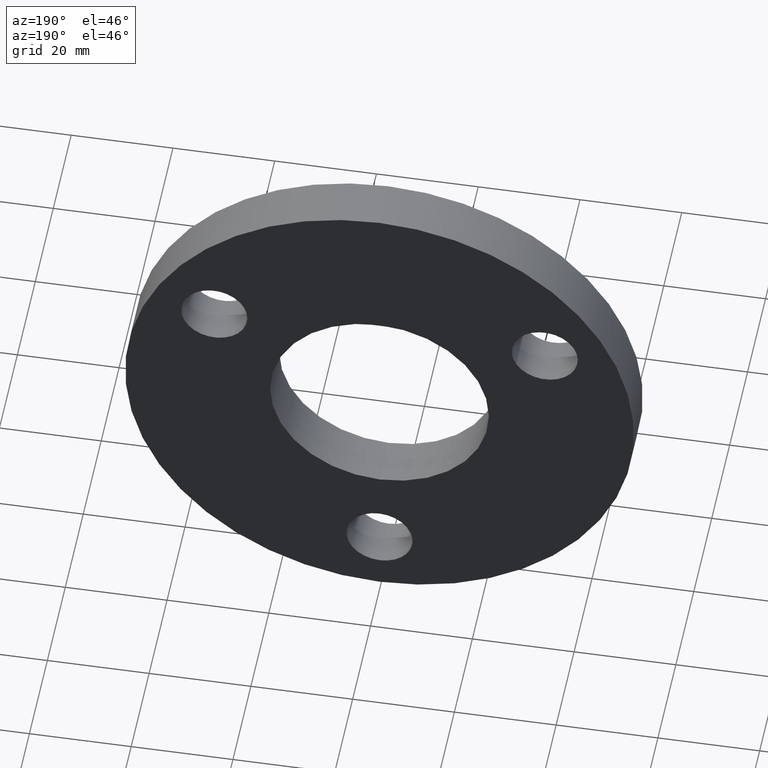
[diagram: clean part render]
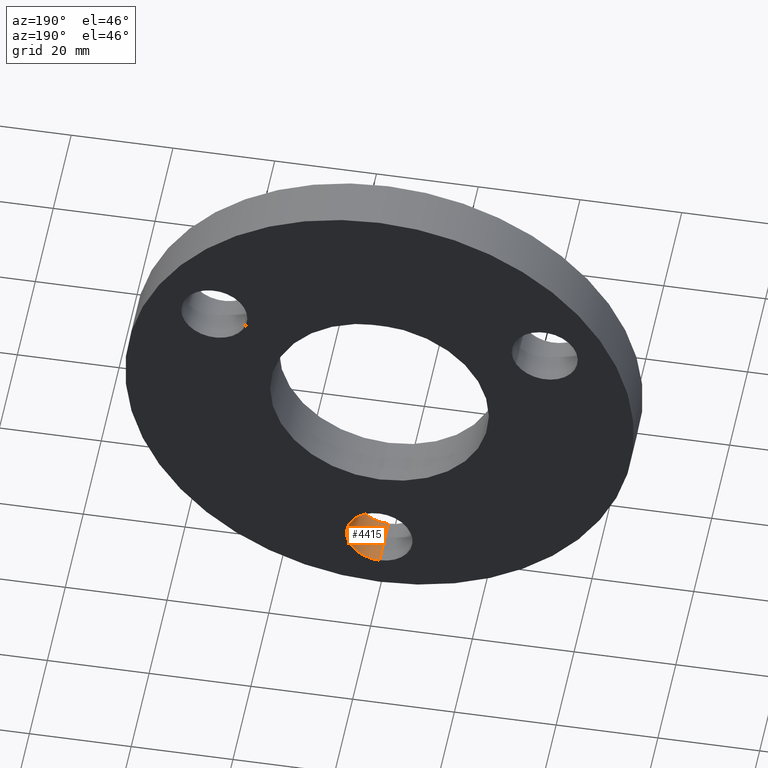
[diagram: same view with one face highlighted and labeled with its STEP entity id]
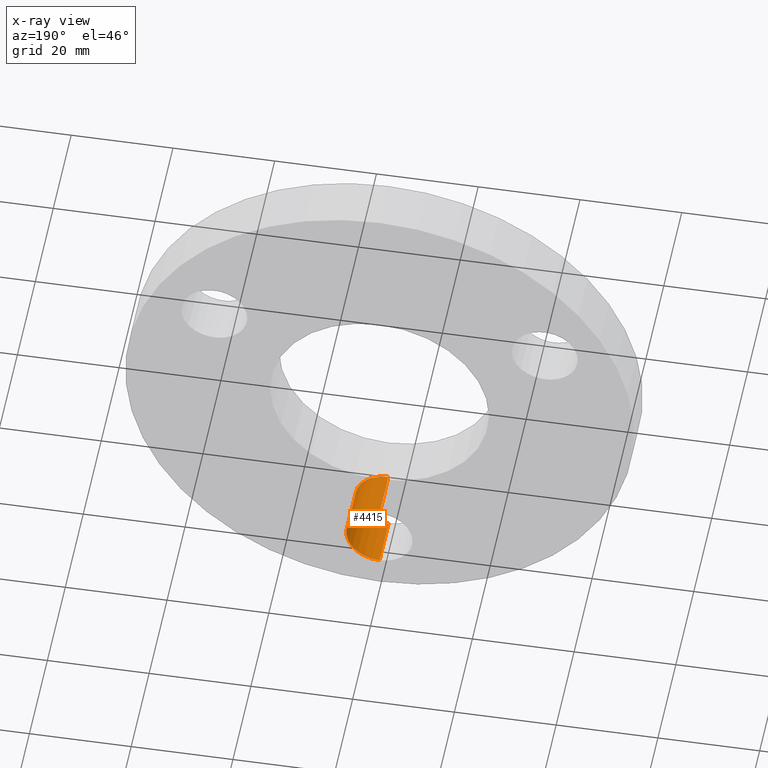
[diagram: x-ray of the same camera — body ghosted, the highlighted face saturated]
A machine part, auxiliary view. The second image highlights one B-rep face of the part: STEP entity #4415.
The next image is the same camera in x-ray: the body ghosted, the highlighted face saturated — about 1% of this face is hidden behind the body in this view.
In plain terms, the highlighted cylindrical surface (edge-blend (fillet) strip) has radius 6.5 mm, axis along (-0, 1, -0).
Its self-contained STEP definition (entity closure, byte-faithful):
#68 = EDGE_LOOP ( 'NONE', ( #2579, #5557, #6707, #6791 ) ) ;
#75 = CARTESIAN_POINT ( 'NONE',  ( 7.960204194457797400E-016, 0.0000000000000000000, -44.00000000000000000 ) ) ;
#230 = LINE ( 'NONE', #2110, #5708 ) ;
#471 = VERTEX_POINT ( 'NONE', #3000 ) ;
#1193 = EDGE_CURVE ( 'NONE', #471, #2128, #7029, .T. ) ;
#1747 = AXIS2_PLACEMENT_3D ( 'NONE', #12008, #8939, #7911 ) ;
#2110 = CARTESIAN_POINT ( 'NONE',  ( 0.0000000000000000000, 0.0000000000000000000, -31.00000000000000000 ) ) ;
#2128 = VERTEX_POINT ( 'NONE', #75 ) ;
#2579 = ORIENTED_EDGE ( 'NONE', *, *, #9832, .F. ) ;
#3000 = CARTESIAN_POINT ( 'NONE',  ( 0.0000000000000000000, 0.0000000000000000000, -31.00000000000000000 ) ) ;
#3536 = VECTOR ( 'NONE', #3958, 1000.000000000000000 ) ;
#3761 = DIRECTION ( 'NONE',  ( 0.0000000000000000000, 0.0000000000000000000, 1.000000000000000000 ) ) ;
#3958 = DIRECTION ( 'NONE',  ( -0.0000000000000000000, 1.000000000000000000, -0.0000000000000000000 ) ) ;
#4049 = DIRECTION ( 'NONE',  ( -0.0000000000000000000, 1.000000000000000000, -0.0000000000000000000 ) ) ;
#4415 = ADVANCED_FACE ( 'NONE', ( #6375 ), #12751, .F. ) ;
#5222 = VERTEX_POINT ( 'NONE', #11714 ) ;
#5557 = ORIENTED_EDGE ( 'NONE', *, *, #1193, .F. ) ;
#5703 = CARTESIAN_POINT ( 'NONE',  ( 0.0000000000000000000, 0.0000000000000000000, -37.50000000000000000 ) ) ;
#5708 = VECTOR ( 'NONE', #12266, 1000.000000000000000 ) ;
#5816 = DIRECTION ( 'NONE',  ( 0.0000000000000000000, 0.0000000000000000000, 1.000000000000000000 ) ) ;
#5943 = CARTESIAN_POINT ( 'NONE',  ( 0.0000000000000000000, 0.0000000000000000000, -37.50000000000000000 ) ) ;
#6194 = CIRCLE ( 'NONE', #1747, 6.499999999999999100 ) ;
#6333 = EDGE_CURVE ( 'NONE', #5222, #10644, #6194, .T. ) ;
#6375 = FACE_OUTER_BOUND ( 'NONE', #68, .T. ) ;
#6654 = DIRECTION ( 'NONE',  ( 0.0000000000000000000, 1.000000000000000000, 0.0000000000000000000 ) ) ;
#6707 = ORIENTED_EDGE ( 'NONE', *, *, #11066, .T. ) ;
#6791 = ORIENTED_EDGE ( 'NONE', *, *, #6333, .T. ) ;
#7029 = CIRCLE ( 'NONE', #11740, 6.499999999999999100 ) ;
#7513 = CARTESIAN_POINT ( 'NONE',  ( 7.960204194457797400E-016, 10.00000000000000000, -44.00000000000000000 ) ) ;
#7911 = DIRECTION ( 'NONE',  ( 0.0000000000000000000, 0.0000000000000000000, 1.000000000000000000 ) ) ;
#8939 = DIRECTION ( 'NONE',  ( 0.0000000000000000000, 1.000000000000000000, 0.0000000000000000000 ) ) ;
#9094 = LINE ( 'NONE', #11903, #3536 ) ;
#9477 = AXIS2_PLACEMENT_3D ( 'NONE', #5943, #4049, #5816 ) ;
#9832 = EDGE_CURVE ( 'NONE', #2128, #10644, #9094, .T. ) ;
#10644 = VERTEX_POINT ( 'NONE', #7513 ) ;
#11066 = EDGE_CURVE ( 'NONE', #471, #5222, #230, .T. ) ;
#11714 = CARTESIAN_POINT ( 'NONE',  ( 0.0000000000000000000, 10.00000000000000000, -31.00000000000000000 ) ) ;
#11740 = AXIS2_PLACEMENT_3D ( 'NONE', #5703, #6654, #3761 ) ;
#11903 = CARTESIAN_POINT ( 'NONE',  ( 7.960204194457795500E-016, 0.0000000000000000000, -44.00000000000000000 ) ) ;
#12008 = CARTESIAN_POINT ( 'NONE',  ( 0.0000000000000000000, 10.00000000000000000, -37.50000000000000000 ) ) ;
#12266 = DIRECTION ( 'NONE',  ( -0.0000000000000000000, 1.000000000000000000, -0.0000000000000000000 ) ) ;
#12751 = CYLINDRICAL_SURFACE ( 'NONE', #9477, 6.499999999999999100 ) ;